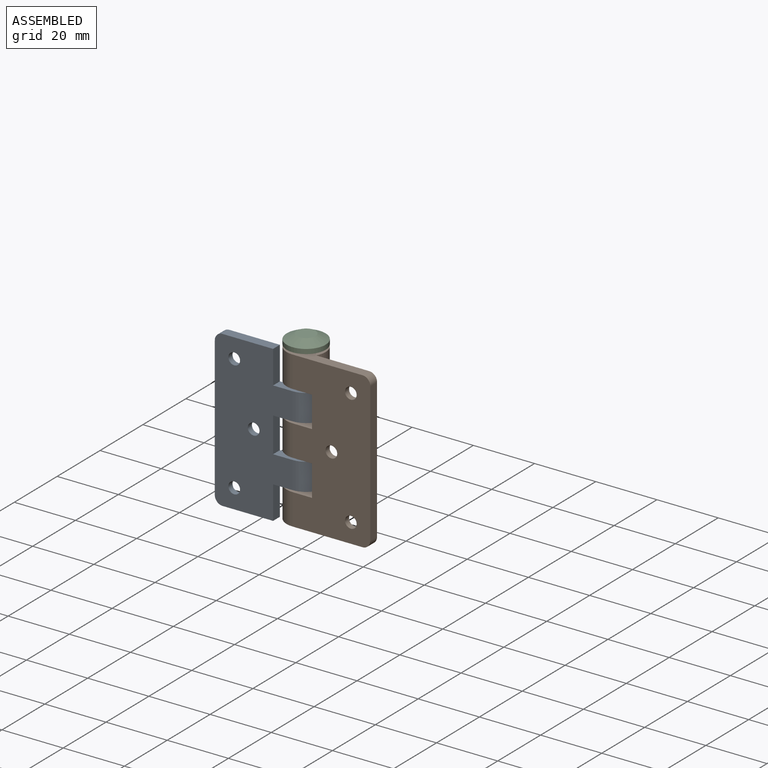
[diagram: assembled view]
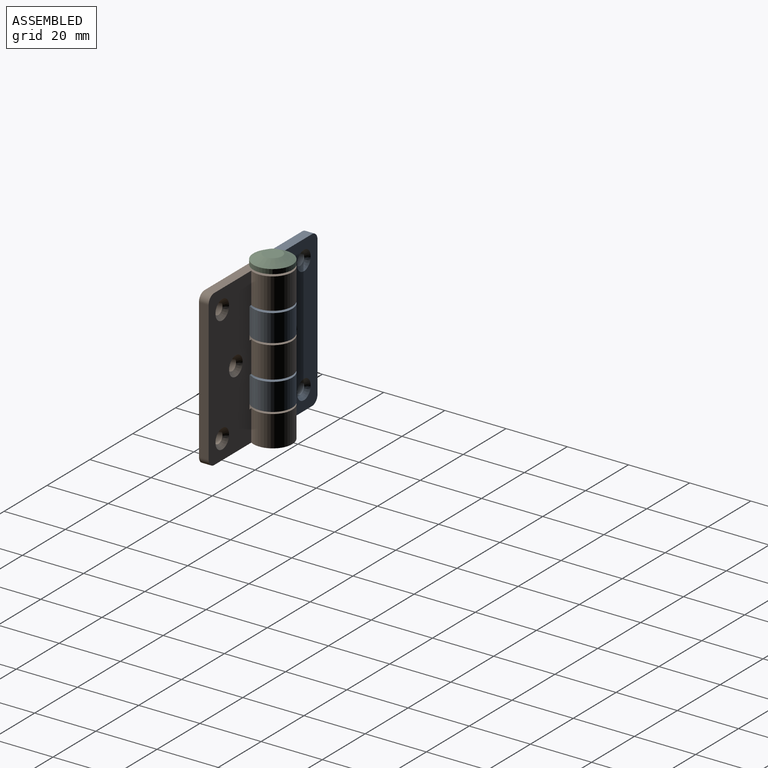
[diagram: assembled view, second angle]
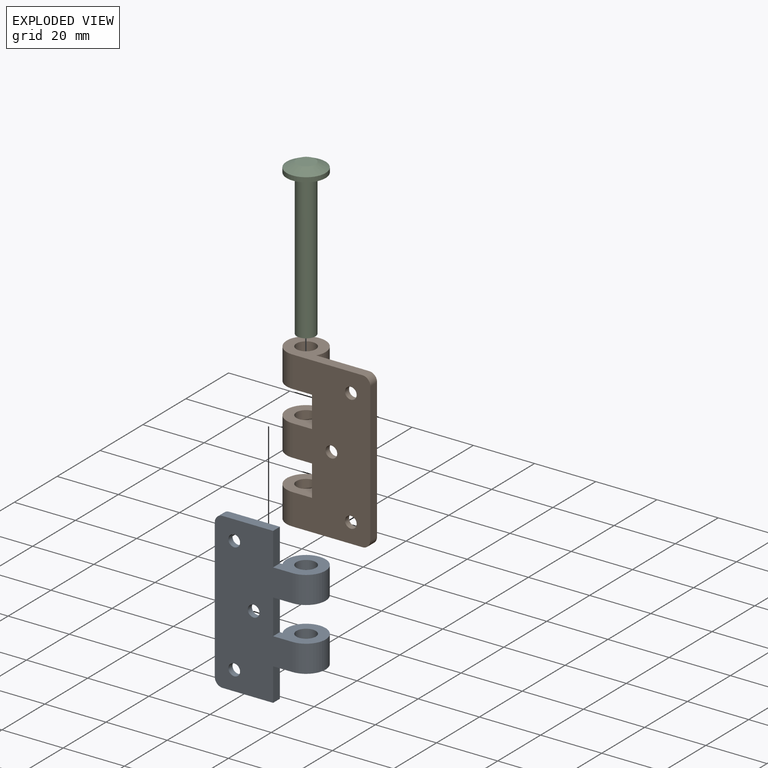
[diagram: exploded view]
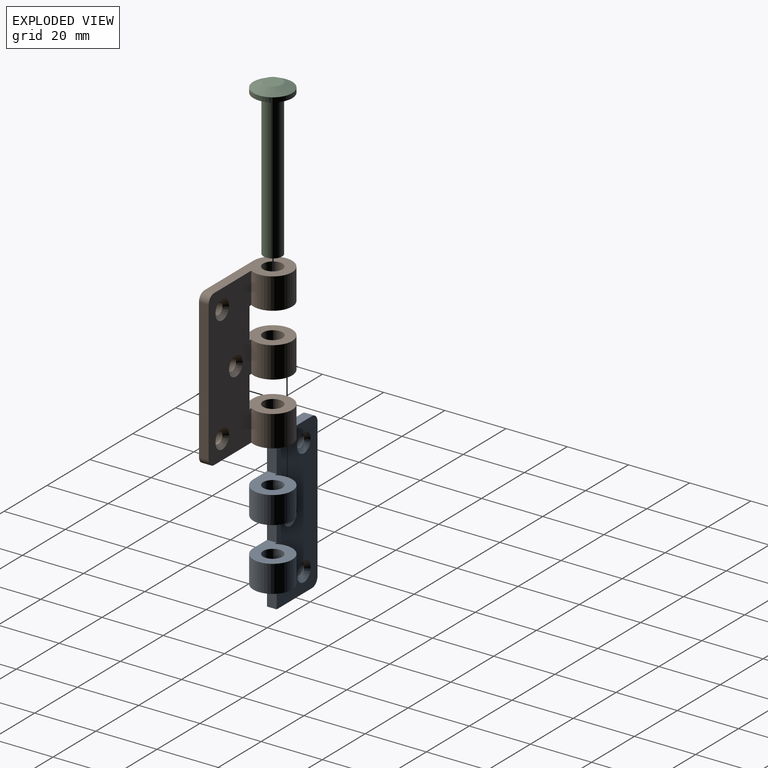
[diagram: exploded view, second angle]
ASSEMBLY  parts=3 mates=2
PART A: 24 faces, bbox 31.8x12.7x50.8 mm
  f0: plane 50.8x19.9mm, normal (0,-1,0), area 885.1mm2, adj f2,f3,f4,f5,f6,f7,f8,f9
  f1: plane 50.8x25.4mm, normal (0,1,0), area 1043.7mm2, adj f2,f3,f4,f5,f6,f7,f8,f9
  f2: cylinder r=6.35mm len=12.7mm, axis (0,0,1), area 295.6mm2, adj f0,f1,f11,f12
  f3: cylinder r=6.35mm len=12.7mm, axis (0,0,1), area 295.6mm2, adj f0,f1,f7,f10
  f4: plane 16.51x3.18mm, normal (0,0,-1), area 52.4mm2, adj f0,f1,f8,f22
  f5: plane 45.72x3.18mm, normal (1,0,0), area 145.2mm2, adj f0,f1,f22,f23
  f6: plane 16.51x3.18mm, normal (0,0,1), area 52.4mm2, adj f0,f1,f13,f23
  f7: plane 12.7x12.7mm, normal (0,0,-1), area 102.8mm2, adj f0,f1,f3,f8,f14
  f8: plane 10.8x3.18mm, normal (-1,0,0), area 34.3mm2, adj f0,f1,f4,f7
  f9: plane 11.43x3.18mm, normal (-1,0,0), area 36.3mm2, adj f0,f1,f10,f11
  f10: plane 12.7x12.7mm, normal (0,0,1), area 102.8mm2, adj f0,f1,f3,f9,f14
  f11: plane 12.7x12.7mm, normal (0,0,-1), area 102.8mm2, adj f0,f1,f2,f9,f15
  f12: plane 12.7x12.7mm, normal (0,0,1), area 102.8mm2, adj f0,f1,f2,f13,f15
  f13: plane 10.8x3.18mm, normal (-1,0,0), area 34.3mm2, adj f0,f1,f6,f12
  f14: cylinder r=3.17mm len=8.89mm, axis (0,0,1), area 177.3mm2, adj f7,f10
  f15: cylinder r=3.17mm len=8.89mm, axis (0,0,1), area 177.3mm2, adj f11,f12
  f16: cylinder r=1.91mm len=3.81mm, axis (0,-1,0), area 22.8mm2, adj f1,f17
  f17: cone r=1.91mm half-angle=45deg, axis (0,-1,0), area 28.7mm2, adj f0,f16
  f18: cylinder r=1.91mm len=3.81mm, axis (0,-1,0), area 22.8mm2, adj f1,f19
  f19: cone r=1.91mm half-angle=45deg, axis (0,-1,0), area 28.7mm2, adj f0,f18
  f20: cylinder r=1.91mm len=3.81mm, axis (0,-1,0), area 22.8mm2, adj f1,f21
  f21: cone r=1.91mm half-angle=45deg, axis (0,-1,0), area 28.7mm2, adj f0,f20
  f22: cylinder r=2.54mm len=3.18mm, axis (0,-1,0), area 12.7mm2, adj f0,f1,f4,f5
  f23: cylinder r=2.54mm len=3.18mm, axis (0,1,0), area 12.7mm2, adj f0,f1,f5,f6
PART B: 25 faces, bbox 31.8x12.7x50.8 mm
  f0: plane 50.8x19.9mm, normal (0,-1,0), area 895.9mm2, adj f3,f4,f5,f6,f7,f8,f10,f11
  f1: cylinder r=3.17mm len=10.16mm, axis (0,0,1), area 202.7mm2, adj f8,f16
  f2: cylinder r=3.17mm len=10.16mm, axis (0,0,1), area 202.7mm2, adj f6,f12
  f3: cylinder r=6.35mm len=12.7mm, axis (0,0,1), area 337.8mm2, adj f0,f8,f9,f16
  f4: cylinder r=6.35mm len=12.7mm, axis (0,0,1), area 337.8mm2, adj f0,f9,f14,f17
  f5: cylinder r=6.35mm len=12.7mm, axis (0,0,1), area 337.8mm2, adj f0,f6,f9,f12
  f6: plane 29.21x12.7mm, normal (0,0,1), area 155.2mm2, adj f0,f2,f5,f9,f10
  f7: plane 45.72x3.18mm, normal (-1,0,0), area 145.2mm2, adj f0,f9,f10,f11
  f8: plane 29.21x12.7mm, normal (0,0,-1), area 155.2mm2, adj f0,f1,f3,f9,f11
  f9: plane 50.8x25.4mm, normal (0,1,0), area 1124.3mm2, adj f3,f4,f5,f6,f7,f8,f10,f11
  f10: cylinder r=2.54mm len=3.18mm, axis (0,-1,0), area 12.7mm2, adj f0,f6,f7,f9
  f11: cylinder r=2.54mm len=3.18mm, axis (0,1,0), area 12.7mm2, adj f0,f7,f8,f9
  f12: plane 12.7x12.7mm, normal (0,0,-1), area 102.8mm2, adj f0,f2,f5,f9,f13
  f13: plane 10.16x3.18mm, normal (1,0,0), area 32.3mm2, adj f0,f9,f12,f14
  f14: plane 12.7x12.7mm, normal (0,0,1), area 102.8mm2, adj f0,f4,f9,f13,f18
  f15: plane 10.16x3.18mm, normal (1,0,0), area 32.3mm2, adj f0,f9,f16,f17
  f16: plane 12.7x12.7mm, normal (0,0,1), area 102.8mm2, adj f0,f1,f3,f9,f15
  f17: plane 12.7x12.7mm, normal (0,0,-1), area 102.8mm2, adj f0,f4,f9,f15,f18
  f18: cylinder r=3.17mm len=10.16mm, axis (0,0,1), area 202.7mm2, adj f14,f17
  f19: cylinder r=1.91mm len=3.81mm, axis (0,-1,0), area 22.8mm2, adj f9,f20
  f20: cone r=1.91mm half-angle=45deg, axis (0,-1,0), area 28.7mm2, adj f0,f19
  f21: cylinder r=1.91mm len=3.81mm, axis (0,-1,0), area 22.8mm2, adj f9,f22
  f22: cone r=1.91mm half-angle=45deg, axis (0,-1,0), area 28.7mm2, adj f0,f21
  f23: cylinder r=1.91mm len=3.81mm, axis (0,-1,0), area 22.8mm2, adj f9,f24
  f24: cone r=1.91mm half-angle=45deg, axis (0,-1,0), area 28.7mm2, adj f0,f23
PART C: 6 faces, bbox 12.7x12.7x50.8 mm
  f0: cylinder r=6.35mm len=12.7mm, axis (0,0,-1), area 60mm2, adj f1,f5
  f1: plane 12.7x12.7mm, normal (0,0,-1), area 97.5mm2, adj f0,f2
  f2: cylinder r=3.05mm len=47.63mm, axis (0,0,-1), area 912.1mm2, adj f1,f3
  f3: plane 6.1x6.1mm, normal (0,0,-1), area 29.2mm2, adj f2
  f4: plane 6.1x6.1mm, normal (0,0,1), area 29.2mm2, adj f5
  f5: cone r=3.05mm half-angle=63.2deg, axis (0,0,-1), area 109.3mm2, adj f0,f4
PLACE A rot(axis=(0,0,1),180deg) t=(1.02,-6.35,-0.12)mm
PLACE B rot(axis=(0,0,1),180deg) t=(-21.82,-6.35,-0.09)mm
PLACE C t=(0,0,-25.42)mm
MATE revolute B.f1 <-> A.f2  axis (0,0,1) through (-2.61,0,17.62)mm
MATE fastened C.f0 <-> B.f1  axis (0,0,-1) through (-2.61,0,40.94)mm
